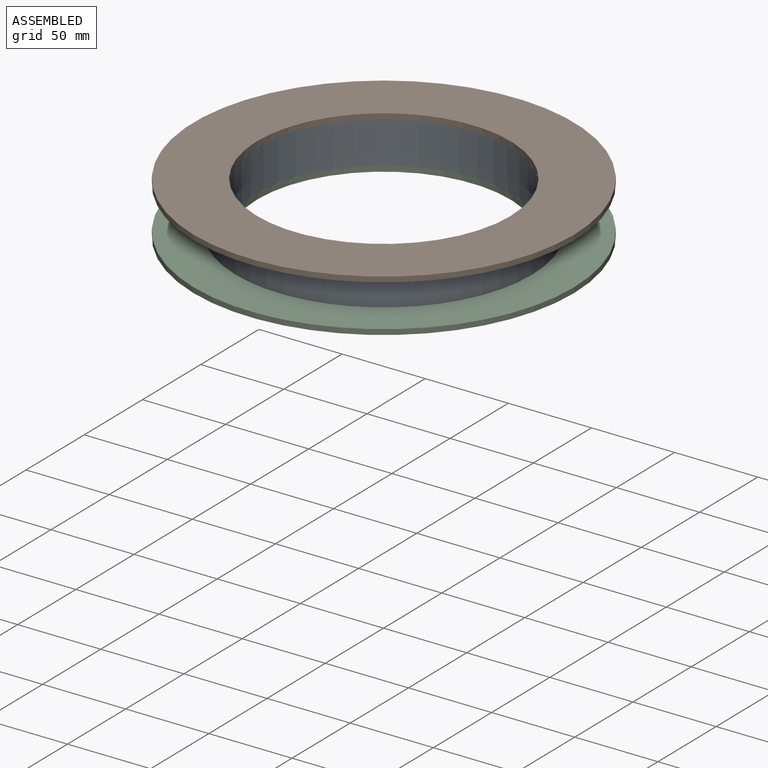
[diagram: assembled view]
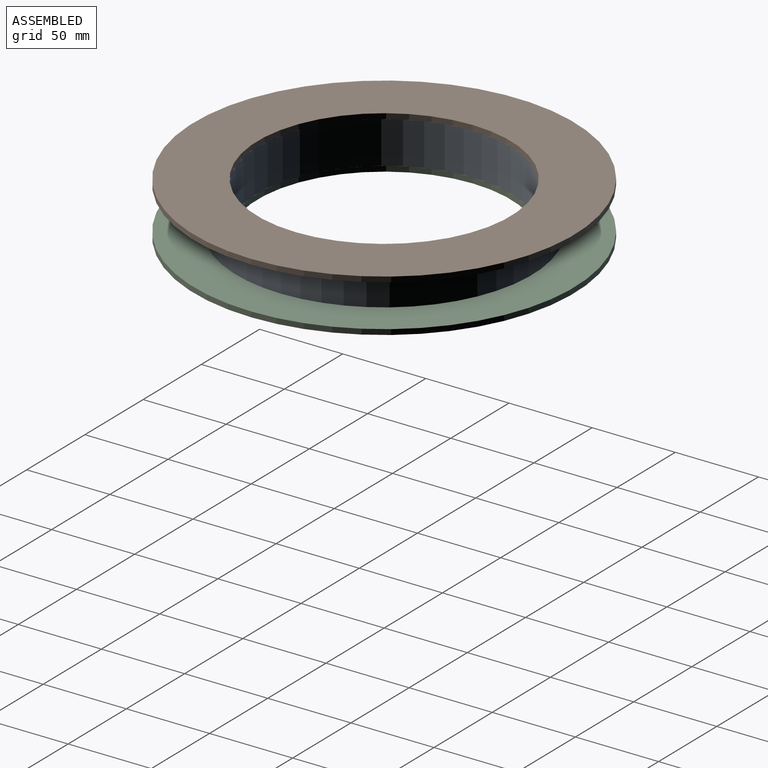
[diagram: assembled view, second angle]
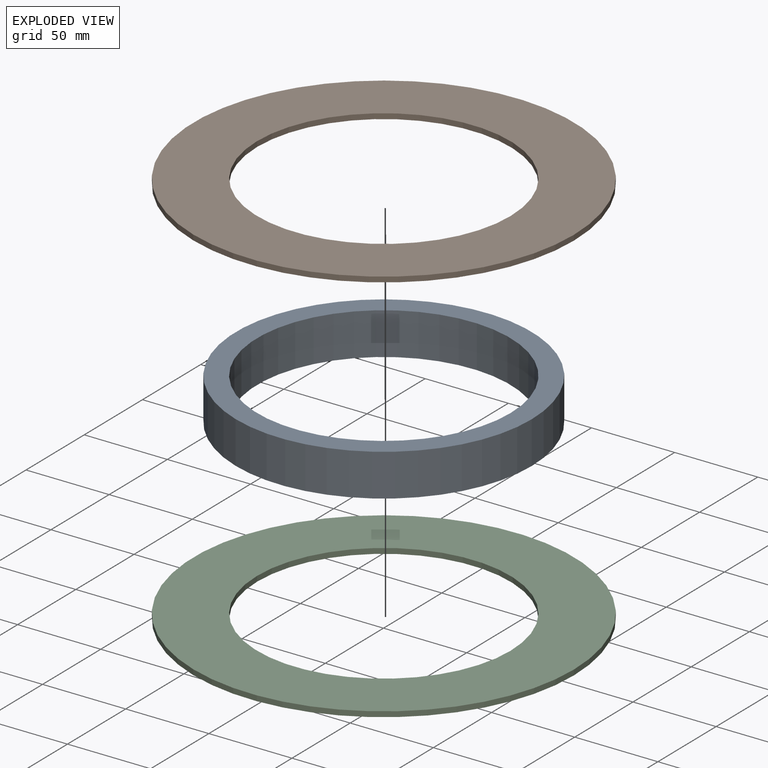
[diagram: exploded view]
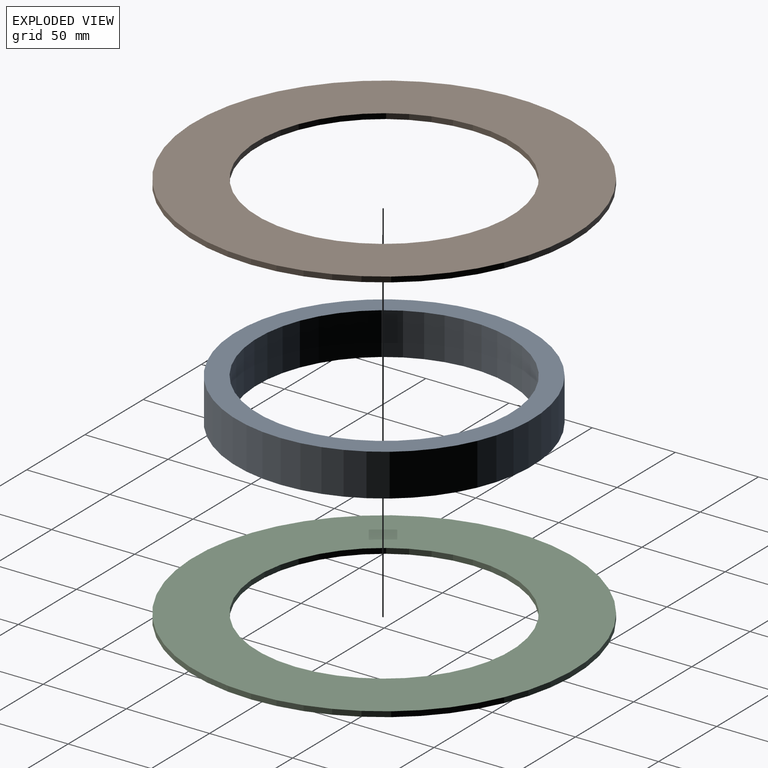
[diagram: exploded view, second angle]
ASSEMBLY  parts=3 mates=2
PART A: 4 faces, bbox 177.8x177.8x25.4 mm
  f0: cylinder r=76.2mm len=152.4mm, axis (0,0,-1), area 12161mm2, adj f2,f3
  f1: cylinder r=88.9mm len=177.8mm, axis (0,0,-1), area 14187.8mm2, adj f2,f3
  f2: plane 177.8x177.8mm, normal (0,0,1), area 6587.2mm2, adj f0,f1
  f3: plane 177.8x177.8mm, normal (0,0,-1), area 6587.2mm2, adj f0,f1
PART B: 4 faces, bbox 228.6x228.6x3.2 mm
  f0: cylinder r=76.2mm len=152.4mm, axis (0,0,-1), area 1520.1mm2, adj f2,f3
  f1: cylinder r=114.3mm len=228.6mm, axis (0,0,-1), area 2280.2mm2, adj f2,f3
  f2: plane 228.6x228.6mm, normal (0,0,1), area 22801.8mm2, adj f0,f1
  f3: plane 228.6x228.6mm, normal (0,0,-1), area 22801.8mm2, adj f0,f1
PART C: same geometry as B
PLACE A t=(0.12,0.08,1.61)mm
PLACE B t=(0.12,0.08,27.01)mm
PLACE C t=(0.12,0.08,-1.57)mm
MATE fastened B.f1 <-> A.f1  axis (0,0,-1) through (0.12,0.08,27.01)mm
MATE fastened A.f1 <-> C.f1  axis (0,0,-1) through (0.12,0.08,1.61)mm
